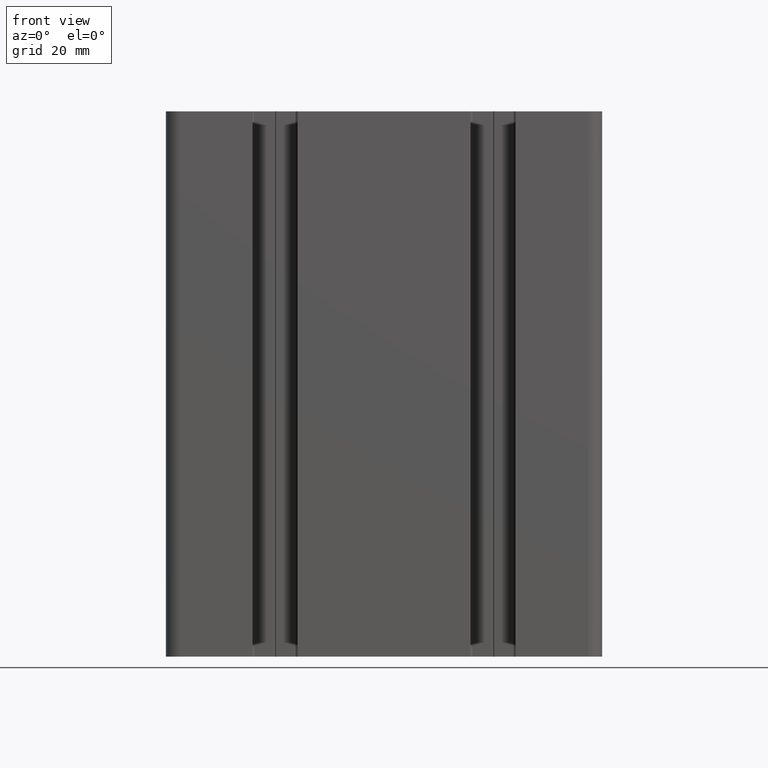
[diagram: clean part render]
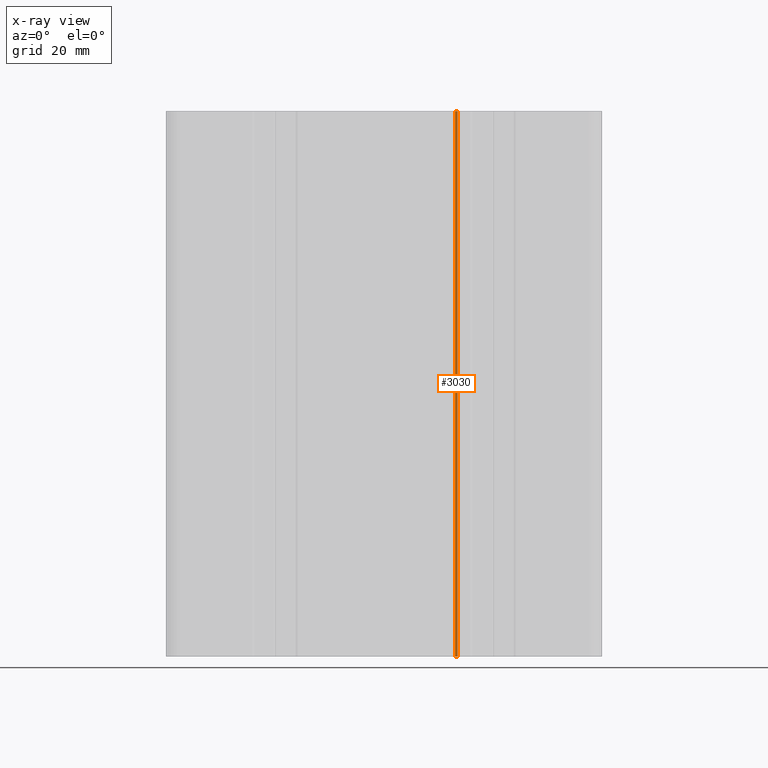
[diagram: x-ray — body ghosted, one internal face saturated and labeled with its STEP entity id]
A machine part, front view, then the same camera in x-ray: the body is ghosted and one INTERNAL B-rep face — a face not visible from any outside direction — is saturated and labeled: STEP entity #3030.
In plain terms, the highlighted cylindrical surface (edge-blend (fillet) strip) has radius 0.25 mm, axis along (0, 0, 1).
Its self-contained STEP definition (entity closure, byte-faithful):
#192=FACE_OUTER_BOUND('',#348,.T.);
#348=EDGE_LOOP('',(#2259,#2260,#2261,#2262));
#578=LINE('',#4680,#912);
#579=LINE('',#4686,#913);
#912=VECTOR('',#3798,100.);
#913=VECTOR('',#3805,100.);
#1187=CIRCLE('',#3257,0.249999999999392);
#1188=CIRCLE('',#3258,0.249999999999392);
#1371=VERTEX_POINT('',#4676);
#1372=VERTEX_POINT('',#4678);
#1373=VERTEX_POINT('',#4682);
#1374=VERTEX_POINT('',#4684);
#1740=EDGE_CURVE('',#1371,#1372,#578,.T.);
#1741=EDGE_CURVE('',#1373,#1371,#1187,.T.);
#1742=EDGE_CURVE('',#1374,#1372,#1188,.T.);
#1743=EDGE_CURVE('',#1373,#1374,#579,.T.);
#2259=ORIENTED_EDGE('',*,*,#1741,.T.);
#2260=ORIENTED_EDGE('',*,*,#1740,.T.);
#2261=ORIENTED_EDGE('',*,*,#1742,.F.);
#2262=ORIENTED_EDGE('',*,*,#1743,.F.);
#2938=CYLINDRICAL_SURFACE('',#3256,0.249999999999392);
#3030=ADVANCED_FACE('',(#192),#2938,.F.);
#3256=AXIS2_PLACEMENT_3D('',#4681,#3799,#3800);
#3257=AXIS2_PLACEMENT_3D('',#4683,#3801,#3802);
#3258=AXIS2_PLACEMENT_3D('',#4685,#3803,#3804);
#3798=DIRECTION('',(0.,0.,1.));
#3799=DIRECTION('center_axis',(0.,0.,1.));
#3800=DIRECTION('ref_axis',(-1.,5.68434188609778E-13,0.));
#3801=DIRECTION('center_axis',(0.,0.,-1.));
#3802=DIRECTION('ref_axis',(-1.,5.68434188609778E-13,0.));
#3803=DIRECTION('center_axis',(0.,0.,-1.));
#3804=DIRECTION('ref_axis',(-1.,5.68434188609778E-13,0.));
#3805=DIRECTION('',(0.,0.,1.));
#4676=CARTESIAN_POINT('',(13.4999999999993,16.4999999999999,0.));
#4678=CARTESIAN_POINT('',(13.4999999999993,16.4999999999999,100.));
#4680=CARTESIAN_POINT('',(13.4999999999993,16.4999999999999,0.));
#4681=CARTESIAN_POINT('Origin',(13.2500000000001,16.5,0.));
#4682=CARTESIAN_POINT('',(13.0000000000008,16.5,0.));
#4683=CARTESIAN_POINT('Origin',(13.2500000000001,16.5,0.));
#4684=CARTESIAN_POINT('',(13.0000000000008,16.5,100.));
#4685=CARTESIAN_POINT('Origin',(13.2500000000001,16.5,100.));
#4686=CARTESIAN_POINT('',(13.0000000000008,16.5,0.));